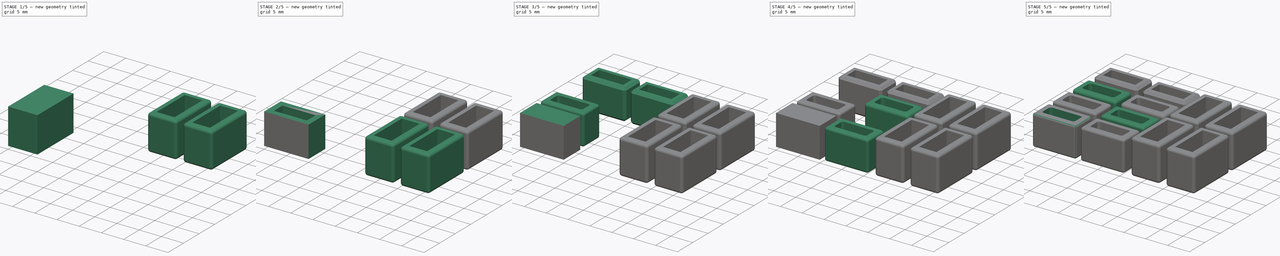
[diagram: build sequence overview — one tinted view per stage of 5, left to right]
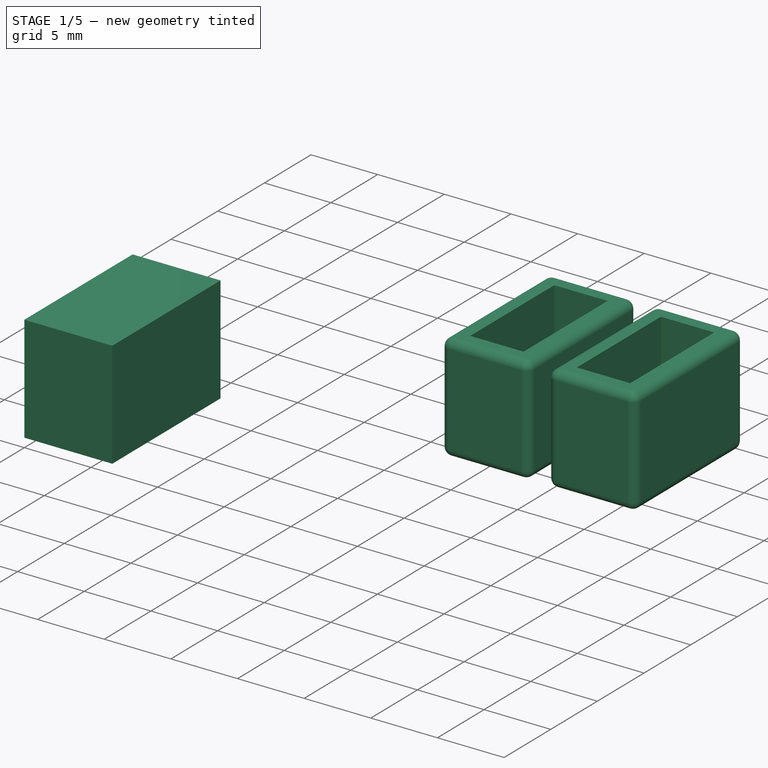
[diagram: stage 1 of 5 — iso view after this stage's code; geometry added in this stage tinted green]
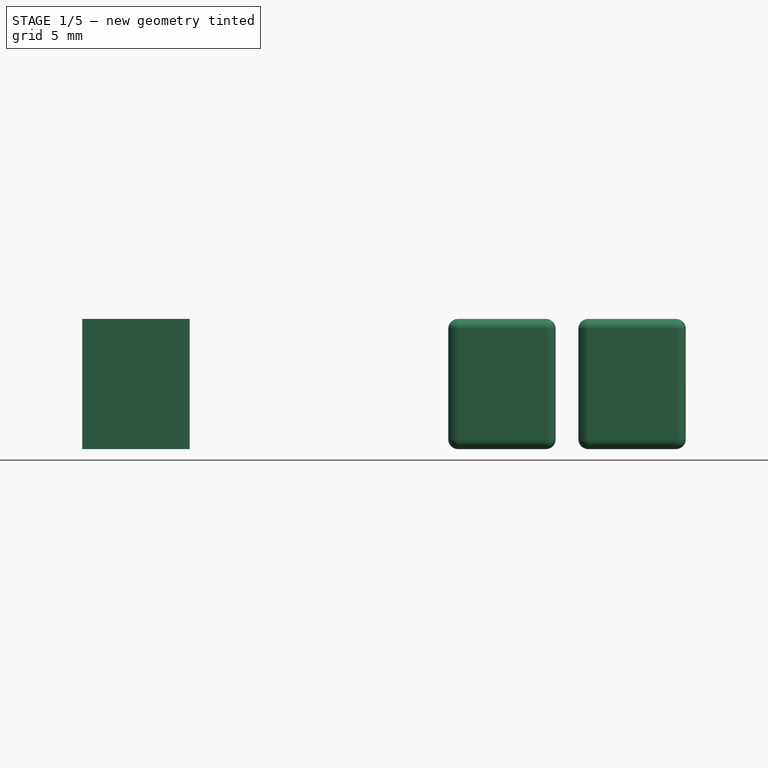
[diagram: stage 1 of 5 — front view after this stage's code; geometry added in this stage tinted green]
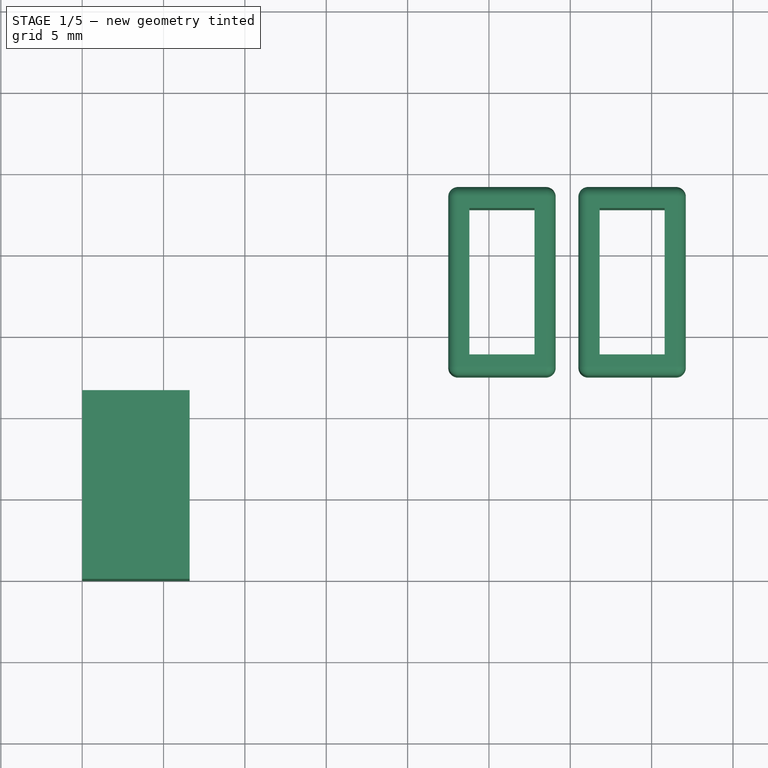
[diagram: stage 1 of 5 — top view after this stage's code; geometry added in this stage tinted green]
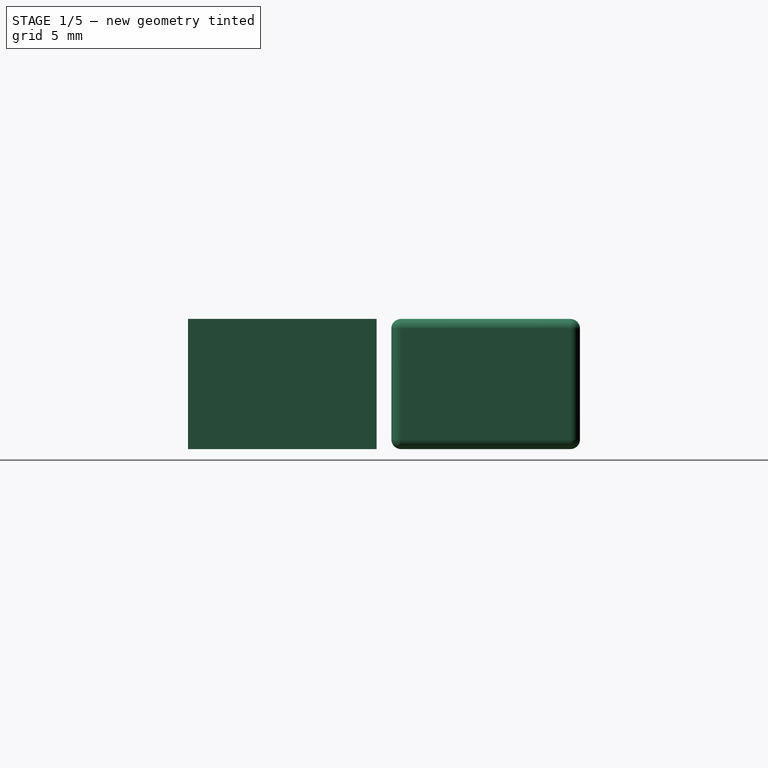
[diagram: stage 1 of 5 — right view after this stage's code; geometry added in this stage tinted green]
FCSTD DOCUMENT  (FreeCAD 0.19R24276 (Git))
Label: salcanV3
License: All rights reserved
LicenseURL: http://en.wikipedia.org/wiki/All_rights_reserved
objects: Part::Box×12, Sketcher::SketchObject×12, PartDesign::FeatureBase×12, PartDesign::Pocket×12, PartDesign::Body×12, Part::Fillet×10, Part::Chamfer×2
note: 84 computed .brp shape members not serialized (recipe doc carries the construction recipe); baked Part::Feature solids carry a one-line shape summary decoded from their .brp

FEATURE [Part::Box] Box009  label="Cube009"
  AttacherType = Attacher::AttachEngine3D
  Height = 8
  Length = 6.6
  Width = 11.6
FEATURE [PartDesign::FeatureBase] BaseFeature009
  BaseFeature = -> Box009
FEATURE [Part::Box] Box010  label="Cube010"
  AttacherType = Attacher::AttachEngine3D
  Height = 8
  Length = 6.6
  Width = 11.6
FEATURE [PartDesign::FeatureBase] BaseFeature010
  BaseFeature = -> Box010
FEATURE [Sketcher::SketchObject] Sketch010
  FullyConstrained = true
  MapMode = 2
  Support = -> [Box010]
  sketch-geometry (4):
    g0: LineSegment StartX=1.3 StartY=1.3 StartZ=0 EndX=5.3 EndY=1.3 EndZ=0
    g1: LineSegment StartX=5.3 StartY=1.3 StartZ=0 EndX=5.3 EndY=10.3 EndZ=0
    g2: LineSegment StartX=5.3 StartY=10.3 StartZ=0 EndX=1.3 EndY=10.3 EndZ=0
    g3: LineSegment StartX=1.3 StartY=10.3 StartZ=0 EndX=1.3 EndY=1.3 EndZ=0
  constraints (12):
    c: Coincident(g0,g1)
    c: Coincident(g1,g2)
    c: Coincident(g2,g3)
    c: Coincident(g3,g0)
    c: Horizontal(g0)
    c: Horizontal(g2)
    c: Vertical(g1)
    c: Vertical(g3)
    c: DistanceY(g3,g3) = 9
    c: DistanceX(g2,g2) = 4
    c: DistanceX(g0) = 1.3
    c: DistanceY(g0) = 1.3
FEATURE [PartDesign::Pocket] Pocket010
  BaseFeature = -> BaseFeature010
  Length = 5
  Length2 = 100
  Profile = -> Sketch010
  Reversed = true
  Type = 1
FEATURE [PartDesign::Body] Body010
  BaseFeature = -> Box010
  Group = -> [BaseFeature010,Sketch010,Pocket010]
  Origin = -> Origin010
  Placement = pos=(22.5,0,0) rot=(0,0,1;0rad)
  Tip = -> Pocket010
FEATURE [Part::Fillet] Fillet008
  Base = -> Body010
  Edges = 12 edges r=0.6: [Edge1,Edge2,Edge3,Edge4,Edge5,Edge6,Edge7,Edge8,Edge9,Edge14,Edge15,Edge16]
  Placement = pos=(0,12.5,0) rot=(0,0,1;0rad)
FEATURE [Part::Box] Box011  label="Cube011"
  AttacherType = Attacher::AttachEngine3D
  Height = 8
  Length = 6.6
  Width = 11.6
FEATURE [Sketcher::SketchObject] Sketch011
  FullyConstrained = true
  MapMode = 2
  Support = -> [Box011]
  sketch-geometry (4):
    g0: LineSegment StartX=1.3 StartY=1.3 StartZ=0 EndX=5.3 EndY=1.3 EndZ=0
    g1: LineSegment StartX=5.3 StartY=1.3 StartZ=0 EndX=5.3 EndY=10.3 EndZ=0
    g2: LineSegment StartX=5.3 StartY=10.3 StartZ=0 EndX=1.3 EndY=10.3 EndZ=0
    g3: LineSegment StartX=1.3 StartY=10.3 StartZ=0 EndX=1.3 EndY=1.3 EndZ=0
  constraints (12):
    c: Coincident(g0,g1)
    c: Coincident(g1,g2)
    c: Coincident(g2,g3)
    c: Coincident(g3,g0)
    c: Horizontal(g0)
    c: Horizontal(g2)
    c: Vertical(g1)
    c: Vertical(g3)
    c: DistanceY(g3,g3) = 9
    c: DistanceX(g2,g2) = 4
    c: DistanceX(g0) = 1.3
    c: DistanceY(g0) = 1.3
FEATURE [PartDesign::FeatureBase] BaseFeature011
  BaseFeature = -> Box011
FEATURE [PartDesign::Pocket] Pocket011
  BaseFeature = -> BaseFeature011
  Length = 5
  Length2 = 100
  Profile = -> Sketch011
  Reversed = true
  Type = 1
FEATURE [PartDesign::Body] Body011
  BaseFeature = -> Box011
  Group = -> [BaseFeature011,Sketch011,Pocket011]
  Origin = -> Origin011
  Placement = pos=(22.5,0,0) rot=(0,0,1;0rad)
  Tip = -> Pocket011
FEATURE [Part::Fillet] Fillet009
  Base = -> Body011
  Edges = 12 edges r=0.6: [Edge1,Edge2,Edge3,Edge4,Edge5,Edge6,Edge7,Edge8,Edge9,Edge14,Edge15,Edge16]
  Placement = pos=(8,12.5,0) rot=(0,0,1;0rad)
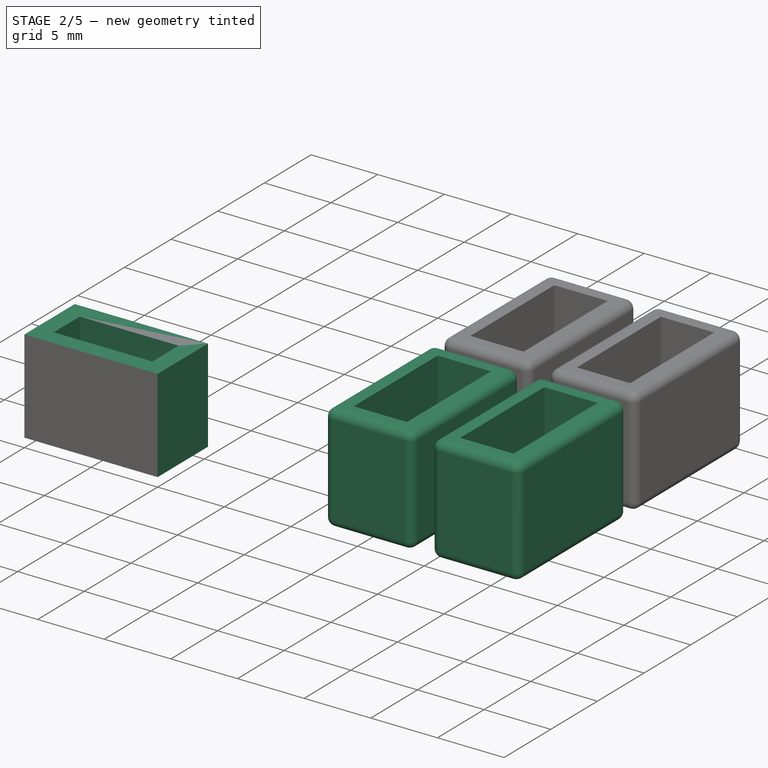
[diagram: stage 2 of 5 — iso view after this stage's code; geometry added in this stage tinted green]
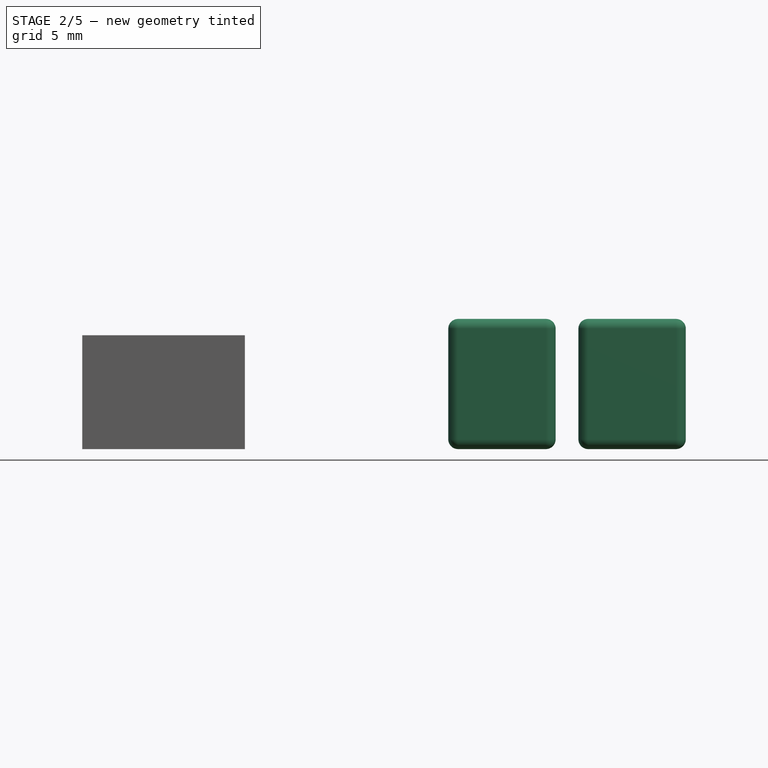
[diagram: stage 2 of 5 — front view after this stage's code; geometry added in this stage tinted green]
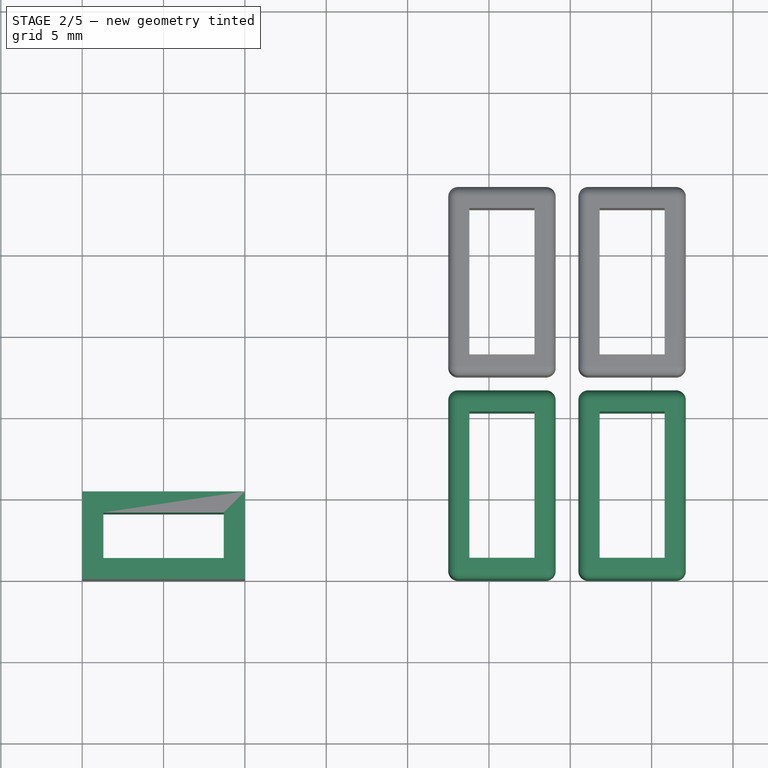
[diagram: stage 2 of 5 — top view after this stage's code; geometry added in this stage tinted green]
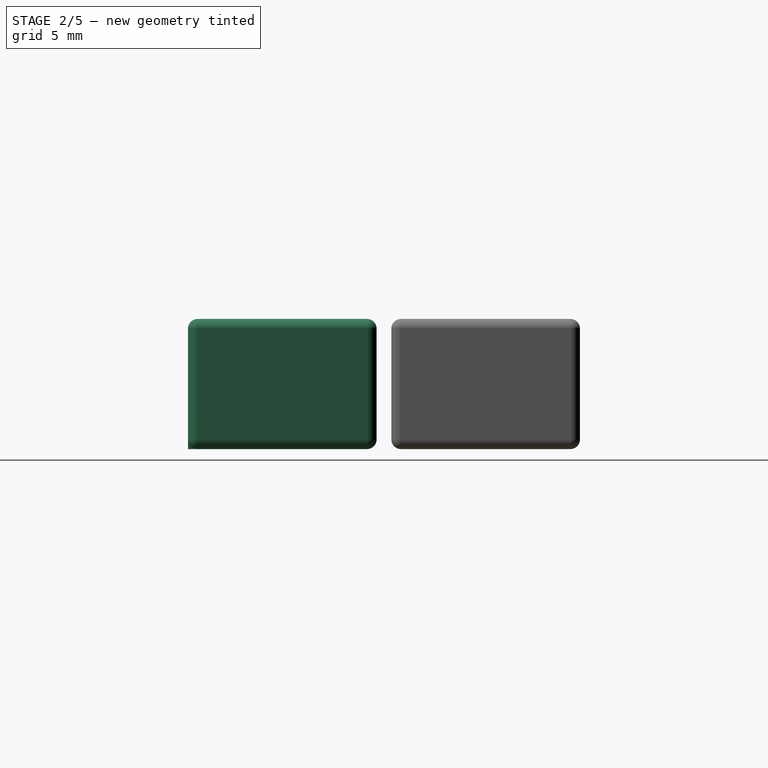
[diagram: stage 2 of 5 — right view after this stage's code; geometry added in this stage tinted green]
FEATURE [Part::Box] Box007  label="Cube007"
  AttacherType = Attacher::AttachEngine3D
  Height = 7
  Length = 10
  Placement = pos=(-11,0,0) rot=(0,0,1;0rad)
  Width = 5.4
FEATURE [Sketcher::SketchObject] Sketch007
  FullyConstrained = true
  sketch-geometry (4):
    g0: LineSegment StartX=1.3 StartY=1.3 StartZ=0 EndX=8.7 EndY=1.3 EndZ=0
    g1: LineSegment StartX=8.7 StartY=1.3 StartZ=0 EndX=8.7 EndY=4.1 EndZ=0
    g2: LineSegment StartX=8.7 StartY=4.1 StartZ=0 EndX=1.3 EndY=4.1 EndZ=0
    g3: LineSegment StartX=1.3 StartY=4.1 StartZ=0 EndX=1.3 EndY=1.3 EndZ=0
  constraints (12):
    c: Coincident(g0,g1)
    c: Coincident(g1,g2)
    c: Coincident(g2,g3)
    c: Coincident(g3,g0)
    c: Horizontal(g0)
    c: Horizontal(g2)
    c: Vertical(g1)
    c: Vertical(g3)
    c: DistanceX(g2,g2) = 7.4
    c: DistanceY(g1,g1) = 2.8
    c: DistanceX(g0) = 1.3
    c: DistanceY(g0) = 1.3
FEATURE [PartDesign::FeatureBase] BaseFeature007
  BaseFeature = -> Box007
FEATURE [PartDesign::Pocket] Pocket007
  BaseFeature = -> BaseFeature007
  Length = 26
  Length2 = 100
  Profile = -> Sketch007
  Reversed = true
  Type = 1
FEATURE [Part::Box] Box008  label="Cube008"
  AttacherType = Attacher::AttachEngine3D
  Height = 8
  Length = 6.6
  Width = 11.6
FEATURE [Sketcher::SketchObject] Sketch008
  FullyConstrained = true
  MapMode = 2
  Support = -> [Box008]
  sketch-geometry (4):
    g0: LineSegment StartX=1.3 StartY=1.3 StartZ=0 EndX=5.3 EndY=1.3 EndZ=0
    g1: LineSegment StartX=5.3 StartY=1.3 StartZ=0 EndX=5.3 EndY=10.3 EndZ=0
    g2: LineSegment StartX=5.3 StartY=10.3 StartZ=0 EndX=1.3 EndY=10.3 EndZ=0
    g3: LineSegment StartX=1.3 StartY=10.3 StartZ=0 EndX=1.3 EndY=1.3 EndZ=0
  constraints (12):
    c: Coincident(g0,g1)
    c: Coincident(g1,g2)
    c: Coincident(g2,g3)
    c: Coincident(g3,g0)
    c: Horizontal(g0)
    c: Horizontal(g2)
    c: Vertical(g1)
    c: Vertical(g3)
    c: DistanceY(g3,g3) = 9
    c: DistanceX(g2,g2) = 4
    c: DistanceX(g0) = 1.3
    c: DistanceY(g0) = 1.3
FEATURE [PartDesign::FeatureBase] BaseFeature008
  BaseFeature = -> Box008
FEATURE [PartDesign::Pocket] Pocket008
  BaseFeature = -> BaseFeature008
  Length = 5
  Length2 = 100
  Profile = -> Sketch008
  Reversed = true
  Type = 1
FEATURE [PartDesign::Body] Body008
  BaseFeature = -> Box008
  Group = -> [BaseFeature008,Sketch008,Pocket008]
  Origin = -> Origin008
  Placement = pos=(22.5,0,0) rot=(0,0,1;0rad)
  Tip = -> Pocket008
FEATURE [Part::Fillet] Fillet006
  Base = -> Body008
  Edges = 12 edges r=0.6: [Edge1,Edge2,Edge3,Edge4,Edge5,Edge6,Edge7,Edge8,Edge9,Edge14,Edge15,Edge16]
FEATURE [Sketcher::SketchObject] Sketch009
  FullyConstrained = true
  MapMode = 2
  Support = -> [Box009]
  sketch-geometry (4):
    g0: LineSegment StartX=1.3 StartY=1.3 StartZ=0 EndX=5.3 EndY=1.3 EndZ=0
    g1: LineSegment StartX=5.3 StartY=1.3 StartZ=0 EndX=5.3 EndY=10.3 EndZ=0
    g2: LineSegment StartX=5.3 StartY=10.3 StartZ=0 EndX=1.3 EndY=10.3 EndZ=0
    g3: LineSegment StartX=1.3 StartY=10.3 StartZ=0 EndX=1.3 EndY=1.3 EndZ=0
  constraints (12):
    c: Coincident(g0,g1)
    c: Coincident(g1,g2)
    c: Coincident(g2,g3)
    c: Coincident(g3,g0)
    c: Horizontal(g0)
    c: Horizontal(g2)
    c: Vertical(g1)
    c: Vertical(g3)
    c: DistanceY(g3,g3) = 9
    c: DistanceX(g2,g2) = 4
    c: DistanceX(g0) = 1.3
    c: DistanceY(g0) = 1.3
FEATURE [PartDesign::Pocket] Pocket009
  BaseFeature = -> BaseFeature009
  Length = 5
  Length2 = 100
  Profile = -> Sketch009
  Reversed = true
  Type = 1
FEATURE [PartDesign::Body] Body009
  BaseFeature = -> Box009
  Group = -> [BaseFeature009,Sketch009,Pocket009]
  Origin = -> Origin009
  Placement = pos=(22.5,0,0) rot=(0,0,1;0rad)
  Tip = -> Pocket009
FEATURE [Part::Fillet] Fillet007
  Base = -> Body009
  Edges = 12 edges r=0.6: [Edge1,Edge2,Edge3,Edge4,Edge5,Edge6,Edge7,Edge8,Edge9,Edge14,Edge15,Edge16]
  Placement = pos=(8,0,0) rot=(0,0,1;0rad)
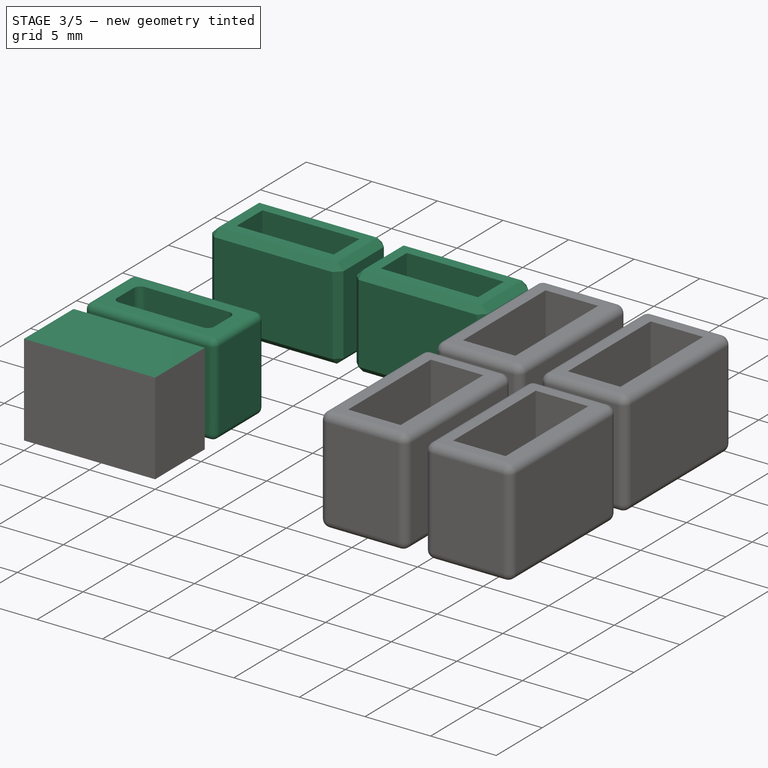
[diagram: stage 3 of 5 — iso view after this stage's code; geometry added in this stage tinted green]
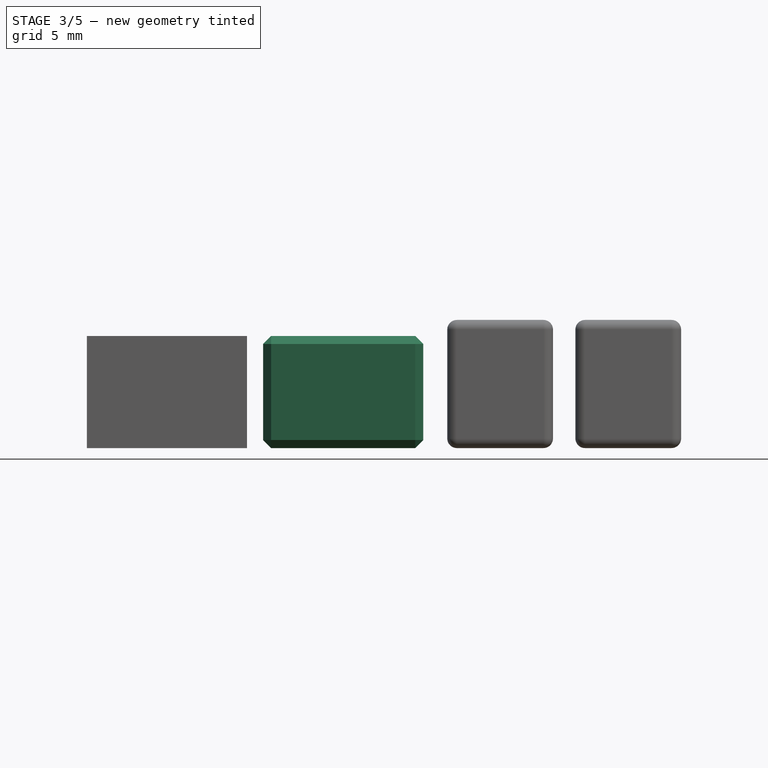
[diagram: stage 3 of 5 — front view after this stage's code; geometry added in this stage tinted green]
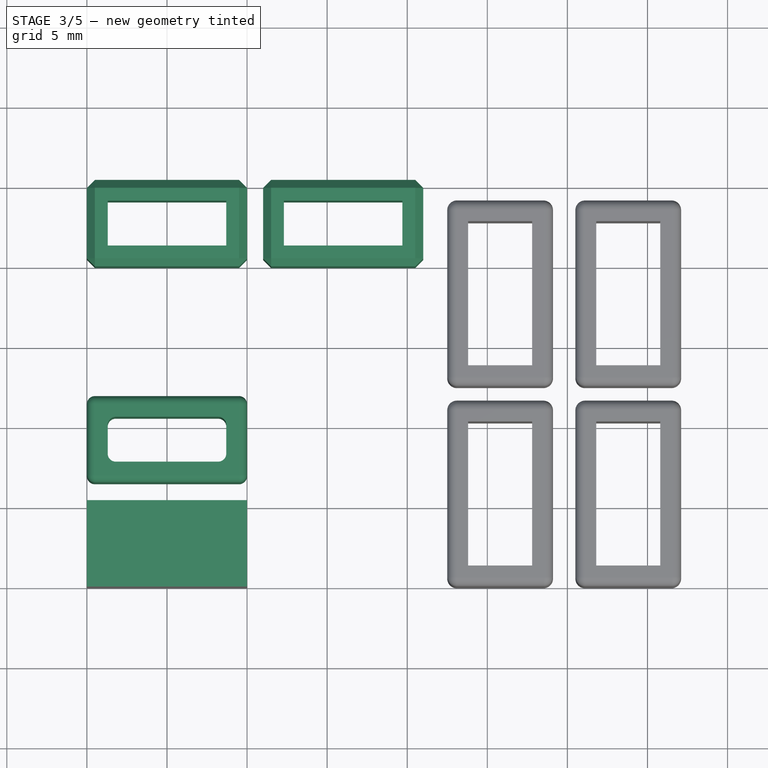
[diagram: stage 3 of 5 — top view after this stage's code; geometry added in this stage tinted green]
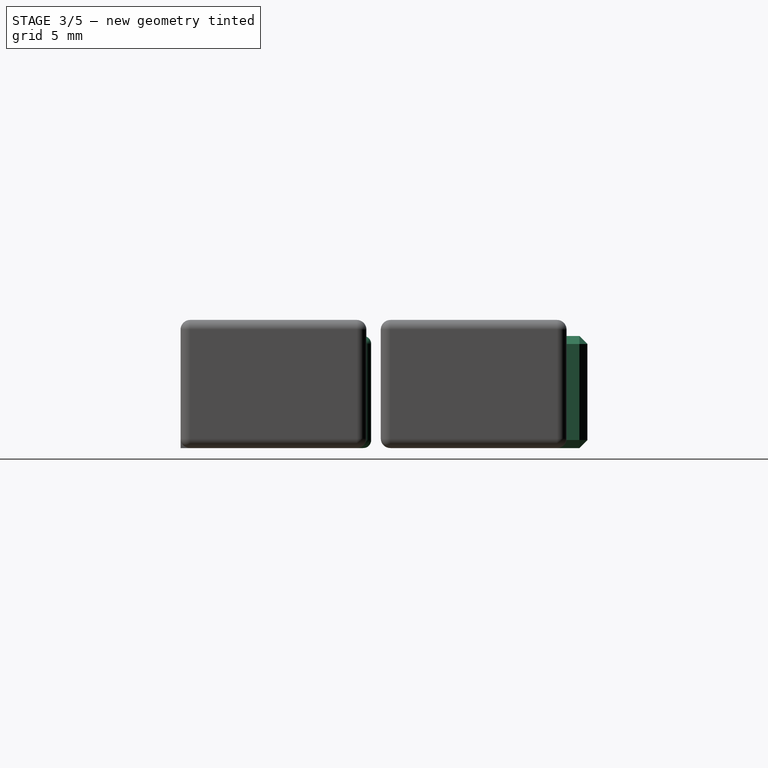
[diagram: stage 3 of 5 — right view after this stage's code; geometry added in this stage tinted green]
FEATURE [Sketcher::SketchObject] Sketch001
  FullyConstrained = true
  sketch-geometry (4):
    g0: LineSegment StartX=1.3 StartY=1.3 StartZ=0 EndX=8.7 EndY=1.3 EndZ=0
    g1: LineSegment StartX=8.7 StartY=1.3 StartZ=0 EndX=8.7 EndY=4.1 EndZ=0
    g2: LineSegment StartX=8.7 StartY=4.1 StartZ=0 EndX=1.3 EndY=4.1 EndZ=0
    g3: LineSegment StartX=1.3 StartY=4.1 StartZ=0 EndX=1.3 EndY=1.3 EndZ=0
  constraints (12):
    c: Coincident(g0,g1)
    c: Coincident(g1,g2)
    c: Coincident(g2,g3)
    c: Coincident(g3,g0)
    c: Horizontal(g0)
    c: Horizontal(g2)
    c: Vertical(g1)
    c: Vertical(g3)
    c: DistanceX(g2,g2) = 7.4
    c: DistanceY(g1,g1) = 2.8
    c: DistanceX(g0) = 1.3
    c: DistanceY(g0) = 1.3
FEATURE [Part::Box] Box001  label="Cube001"
  AttacherType = Attacher::AttachEngine3D
  Height = 7
  Length = 10
  Width = 5.4
FEATURE [PartDesign::FeatureBase] BaseFeature001
  BaseFeature = -> Box001
FEATURE [PartDesign::Pocket] Pocket001
  BaseFeature = -> BaseFeature001
  Length = 26
  Length2 = 100
  Profile = -> Sketch001
  Reversed = true
  Type = 1
FEATURE [PartDesign::Body] Body001
  BaseFeature = -> Box001
  Group = -> [BaseFeature001,Sketch001,Pocket001]
  Origin = -> Origin001
  Tip = -> Pocket001
FEATURE [Sketcher::SketchObject] Sketch002
  FullyConstrained = true
  sketch-geometry (4):
    g0: LineSegment StartX=1.3 StartY=1.3 StartZ=0 EndX=8.7 EndY=1.3 EndZ=0
    g1: LineSegment StartX=8.7 StartY=1.3 StartZ=0 EndX=8.7 EndY=4.1 EndZ=0
    g2: LineSegment StartX=8.7 StartY=4.1 StartZ=0 EndX=1.3 EndY=4.1 EndZ=0
    g3: LineSegment StartX=1.3 StartY=4.1 StartZ=0 EndX=1.3 EndY=1.3 EndZ=0
  constraints (12):
    c: Coincident(g0,g1)
    c: Coincident(g1,g2)
    c: Coincident(g2,g3)
    c: Coincident(g3,g0)
    c: Horizontal(g0)
    c: Horizontal(g2)
    c: Vertical(g1)
    c: Vertical(g3)
    c: DistanceX(g2,g2) = 7.4
    c: DistanceY(g1,g1) = 2.8
    c: DistanceX(g0) = 1.3
    c: DistanceY(g0) = 1.3
FEATURE [Part::Box] Box002  label="Cube002"
  AttacherType = Attacher::AttachEngine3D
  Height = 7
  Length = 10
  Width = 5.4
FEATURE [Part::Fillet] Fillet001
  Base = -> Body001
  Edges = 16 edges r=0.5: [Edge1,Edge2,Edge3,Edge4,Edge5,Edge6,Edge7,Edge8,Edge9,Edge14,Edge15,Edge16,Edge21,Edge22,Edge23,Edge24]
  Placement = pos=(0,6.5,0) rot=(0,0,1;0rad)
FEATURE [Sketcher::SketchObject] Sketch006
  FullyConstrained = true
  sketch-geometry (4):
    g0: LineSegment StartX=1.3 StartY=1.3 StartZ=0 EndX=8.7 EndY=1.3 EndZ=0
    g1: LineSegment StartX=8.7 StartY=1.3 StartZ=0 EndX=8.7 EndY=4.1 EndZ=0
    g2: LineSegment StartX=8.7 StartY=4.1 StartZ=0 EndX=1.3 EndY=4.1 EndZ=0
    g3: LineSegment StartX=1.3 StartY=4.1 StartZ=0 EndX=1.3 EndY=1.3 EndZ=0
  constraints (12):
    c: Coincident(g0,g1)
    c: Coincident(g1,g2)
    c: Coincident(g2,g3)
    c: Coincident(g3,g0)
    c: Horizontal(g0)
    c: Horizontal(g2)
    c: Vertical(g1)
    c: Vertical(g3)
    c: DistanceX(g2,g2) = 7.4
    c: DistanceY(g1,g1) = 2.8
    c: DistanceX(g0) = 1.3
    c: DistanceY(g0) = 1.3
FEATURE [Part::Box] Box006  label="Cube006"
  AttacherType = Attacher::AttachEngine3D
  Height = 7
  Length = 10
  Placement = pos=(-11,0,0) rot=(0,0,1;0rad)
  Width = 5.4
FEATURE [PartDesign::FeatureBase] BaseFeature006
  BaseFeature = -> Box006
FEATURE [PartDesign::Pocket] Pocket006
  BaseFeature = -> BaseFeature006
  Length = 26
  Length2 = 100
  Profile = -> Sketch006
  Reversed = true
  Type = 1
FEATURE [PartDesign::Body] Body006
  BaseFeature = -> Box006
  Group = -> [BaseFeature006,Sketch006,Pocket006]
  Origin = -> Origin006
  Placement = pos=(-11,0,0) rot=(0,0,1;0rad)
  Tip = -> Pocket006
FEATURE [Part::Chamfer] Chamfer
  Base = -> Body006
  Edges = 12 edges r=0.5: [Edge1,Edge2,Edge3,Edge4,Edge5,Edge6,Edge7,Edge8,Edge9,Edge14,Edge15,Edge16]
  Placement = pos=(22,20,0) rot=(0,0,1;0rad)
FEATURE [PartDesign::Body] Body007
  BaseFeature = -> Box007
  Group = -> [BaseFeature007,Sketch007,Pocket007]
  Origin = -> Origin007
  Placement = pos=(-11,0,0) rot=(0,0,1;0rad)
  Tip = -> Pocket007
FEATURE [Part::Chamfer] Chamfer001
  Base = -> Body007
  Edges = 12 edges r=0.5: [Edge1,Edge2,Edge3,Edge4,Edge5,Edge6,Edge7,Edge8,Edge9,Edge14,Edge15,Edge16]
  Placement = pos=(11,20,0) rot=(0,0,1;0rad)
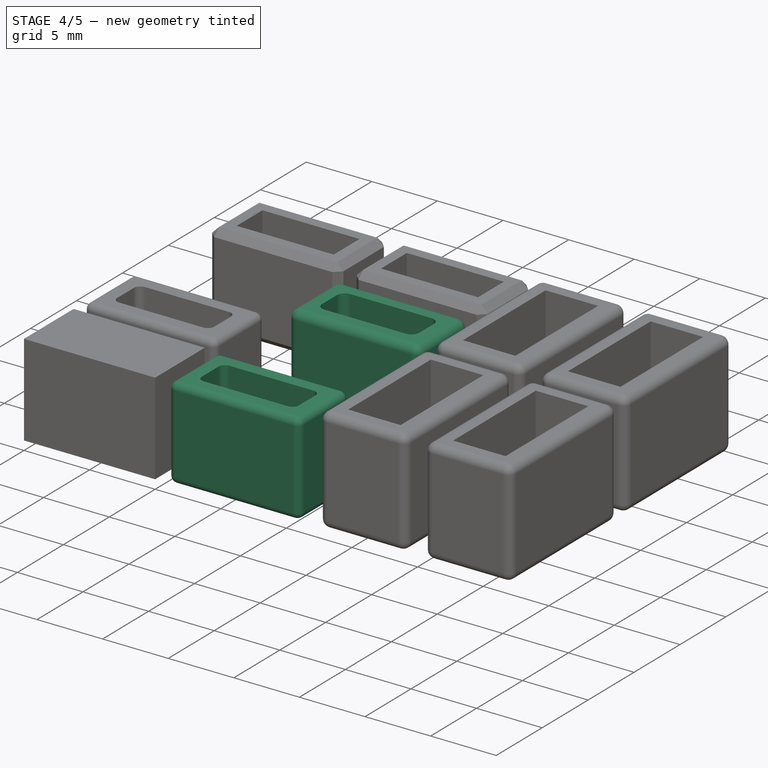
[diagram: stage 4 of 5 — iso view after this stage's code; geometry added in this stage tinted green]
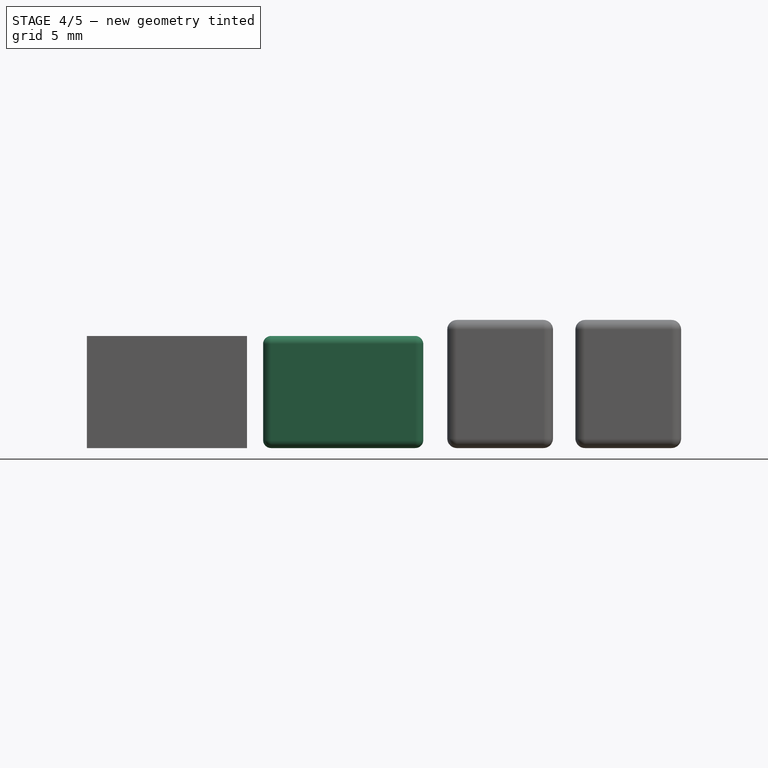
[diagram: stage 4 of 5 — front view after this stage's code; geometry added in this stage tinted green]
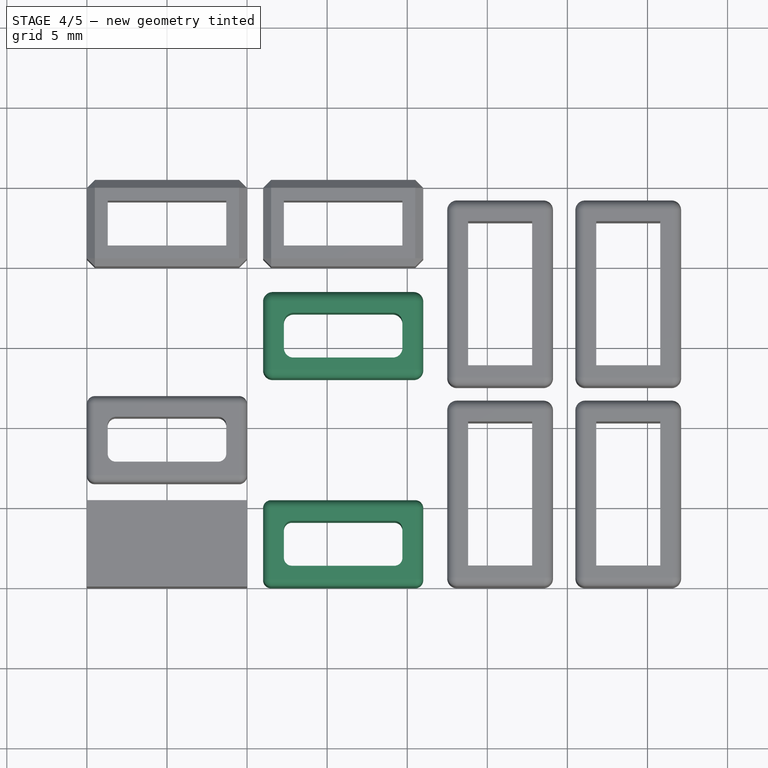
[diagram: stage 4 of 5 — top view after this stage's code; geometry added in this stage tinted green]
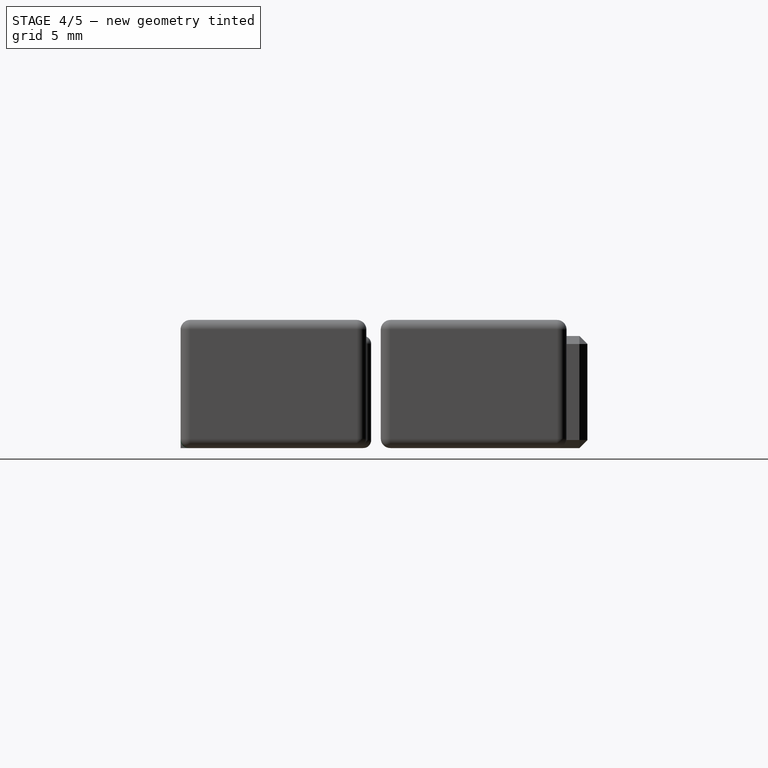
[diagram: stage 4 of 5 — right view after this stage's code; geometry added in this stage tinted green]
FEATURE [PartDesign::FeatureBase] BaseFeature002
  BaseFeature = -> Box002
FEATURE [PartDesign::Pocket] Pocket002
  BaseFeature = -> BaseFeature002
  Length = 26
  Length2 = 100
  Profile = -> Sketch002
  Reversed = true
  Type = 1
FEATURE [Sketcher::SketchObject] Sketch004
  FullyConstrained = true
  sketch-geometry (4):
    g0: LineSegment StartX=1.3 StartY=1.3 StartZ=0 EndX=8.7 EndY=1.3 EndZ=0
    g1: LineSegment StartX=8.7 StartY=1.3 StartZ=0 EndX=8.7 EndY=4.1 EndZ=0
    g2: LineSegment StartX=8.7 StartY=4.1 StartZ=0 EndX=1.3 EndY=4.1 EndZ=0
    g3: LineSegment StartX=1.3 StartY=4.1 StartZ=0 EndX=1.3 EndY=1.3 EndZ=0
  constraints (12):
    c: Coincident(g0,g1)
    c: Coincident(g1,g2)
    c: Coincident(g2,g3)
    c: Coincident(g3,g0)
    c: Horizontal(g0)
    c: Horizontal(g2)
    c: Vertical(g1)
    c: Vertical(g3)
    c: DistanceX(g2,g2) = 7.4
    c: DistanceY(g1,g1) = 2.8
    c: DistanceX(g0) = 1.3
    c: DistanceY(g0) = 1.3
FEATURE [Part::Box] Box004  label="Cube004"
  AttacherType = Attacher::AttachEngine3D
  Height = 7
  Length = 10
  Width = 5.4
FEATURE [PartDesign::FeatureBase] BaseFeature004
  BaseFeature = -> Box004
FEATURE [Sketcher::SketchObject] Sketch005
  FullyConstrained = true
  sketch-geometry (4):
    g0: LineSegment StartX=1.3 StartY=1.3 StartZ=0 EndX=8.7 EndY=1.3 EndZ=0
    g1: LineSegment StartX=8.7 StartY=1.3 StartZ=0 EndX=8.7 EndY=4.1 EndZ=0
    g2: LineSegment StartX=8.7 StartY=4.1 StartZ=0 EndX=1.3 EndY=4.1 EndZ=0
    g3: LineSegment StartX=1.3 StartY=4.1 StartZ=0 EndX=1.3 EndY=1.3 EndZ=0
  constraints (12):
    c: Coincident(g0,g1)
    c: Coincident(g1,g2)
    c: Coincident(g2,g3)
    c: Coincident(g3,g0)
    c: Horizontal(g0)
    c: Horizontal(g2)
    c: Vertical(g1)
    c: Vertical(g3)
    c: DistanceX(g2,g2) = 7.4
    c: DistanceY(g1,g1) = 2.8
    c: DistanceX(g0) = 1.3
    c: DistanceY(g0) = 1.3
FEATURE [Part::Box] Box005  label="Cube005"
  AttacherType = Attacher::AttachEngine3D
  Height = 7
  Length = 10
  Width = 5.4
FEATURE [PartDesign::FeatureBase] BaseFeature005
  BaseFeature = -> Box005
FEATURE [PartDesign::Pocket] Pocket005
  BaseFeature = -> BaseFeature005
  Length = 26
  Length2 = 100
  Profile = -> Sketch005
  Reversed = true
  Type = 1
FEATURE [PartDesign::Body] Body005
  BaseFeature = -> Box005
  Group = -> [BaseFeature005,Sketch005,Pocket005]
  Origin = -> Origin005
  Tip = -> Pocket005
FEATURE [Part::Fillet] Fillet005
  Base = -> Body005
  Edges = 16 edges r=0.6: [Edge1,Edge2,Edge3,Edge4,Edge5,Edge6,Edge7,Edge8,Edge9,Edge14,Edge15,Edge16,Edge21,Edge22,Edge23,Edge24]
  Placement = pos=(11,13,0) rot=(0,0,1;0rad)
FEATURE [Part::Fillet] Fillet002
  Base = -> Body002
  Edges = 16 edges r=0.5: [Edge1,Edge2,Edge3,Edge4,Edge5,Edge6,Edge7,Edge8,Edge9,Edge14,Edge15,Edge16,Edge21,Edge22,Edge23,Edge24]
  Placement = pos=(11,0,0) rot=(0,0,1;0rad)
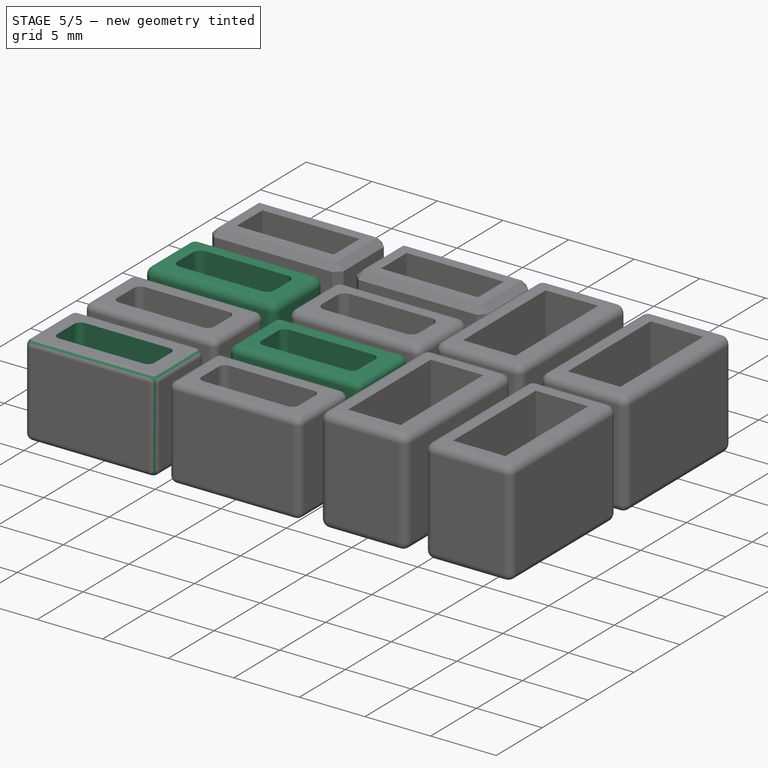
[diagram: stage 5 of 5 — iso view after this stage's code; geometry added in this stage tinted green]
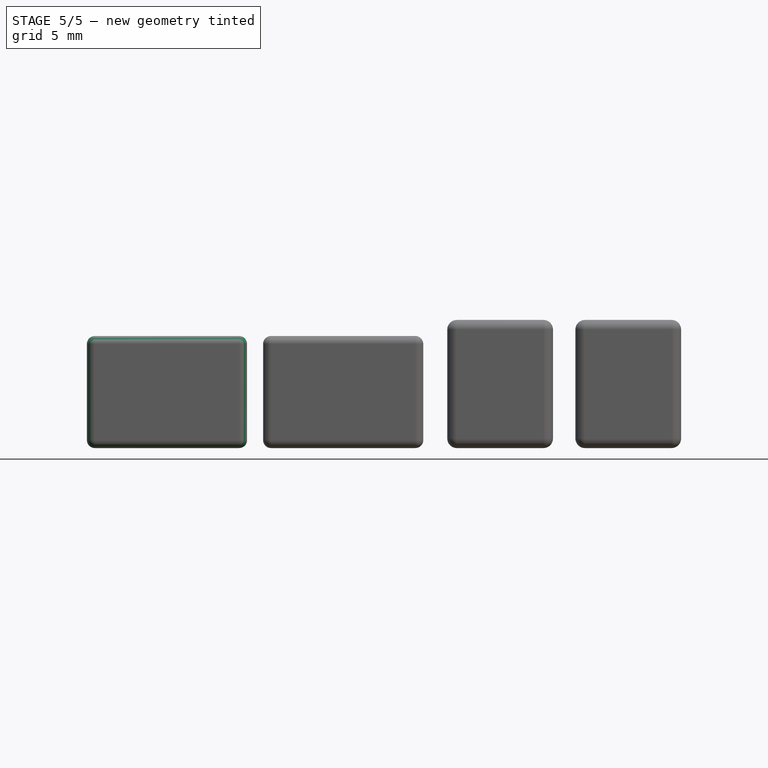
[diagram: stage 5 of 5 — front view after this stage's code; geometry added in this stage tinted green]
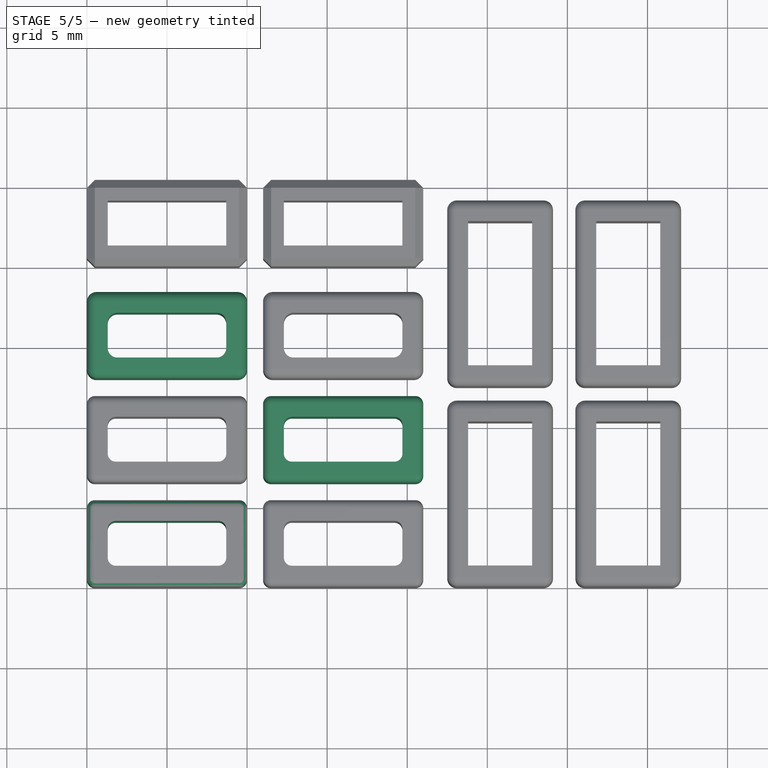
[diagram: stage 5 of 5 — top view after this stage's code; geometry added in this stage tinted green]
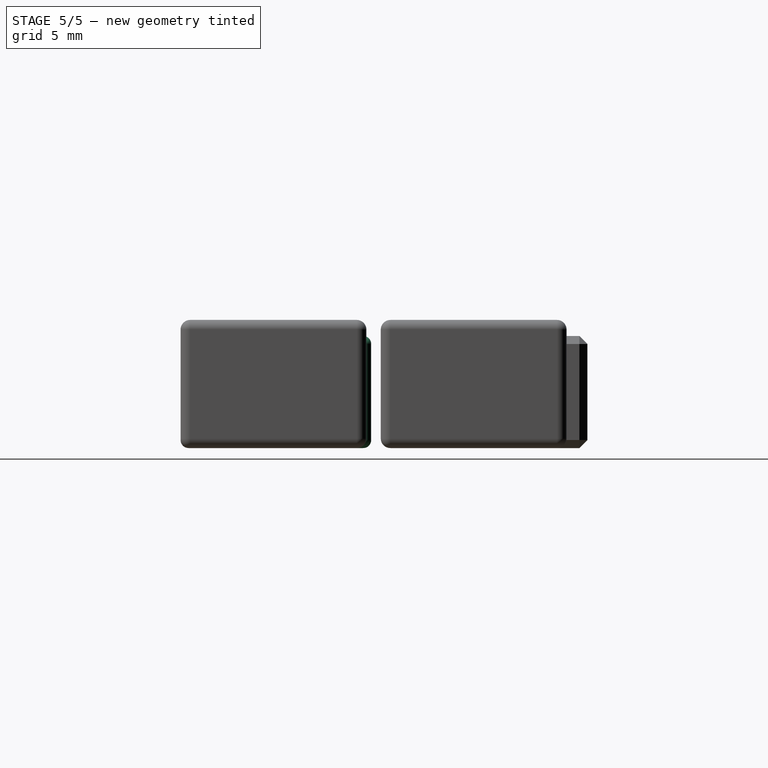
[diagram: stage 5 of 5 — right view after this stage's code; geometry added in this stage tinted green]
FEATURE [Part::Box] Box  label="Cube"
  AttacherType = Attacher::AttachEngine3D
  Height = 7
  Length = 10
  Width = 5.4
FEATURE [Sketcher::SketchObject] Sketch
  FullyConstrained = true
  sketch-geometry (4):
    g0: LineSegment StartX=1.3 StartY=1.3 StartZ=0 EndX=8.7 EndY=1.3 EndZ=0
    g1: LineSegment StartX=8.7 StartY=1.3 StartZ=0 EndX=8.7 EndY=4.1 EndZ=0
    g2: LineSegment StartX=8.7 StartY=4.1 StartZ=0 EndX=1.3 EndY=4.1 EndZ=0
    g3: LineSegment StartX=1.3 StartY=4.1 StartZ=0 EndX=1.3 EndY=1.3 EndZ=0
  constraints (12):
    c: Coincident(g0,g1)
    c: Coincident(g1,g2)
    c: Coincident(g2,g3)
    c: Coincident(g3,g0)
    c: Horizontal(g0)
    c: Horizontal(g2)
    c: Vertical(g1)
    c: Vertical(g3)
    c: DistanceX(g2,g2) = 7.4
    c: DistanceY(g1,g1) = 2.8
    c: DistanceX(g0) = 1.3
    c: DistanceY(g0) = 1.3
FEATURE [PartDesign::FeatureBase] BaseFeature
  BaseFeature = -> Box
FEATURE [PartDesign::Pocket] Pocket
  BaseFeature = -> BaseFeature
  Length = 26
  Length2 = 100
  Profile = -> Sketch
  Reversed = true
  Type = 1
FEATURE [PartDesign::Body] Body
  BaseFeature = -> Box
  Group = -> [BaseFeature,Sketch,Pocket]
  Origin = -> Origin
  Tip = -> Pocket
FEATURE [Part::Fillet] Fillet  label="Fillet000"
  Base = -> Body
  Edges = 16 edges r=0.5: [Edge1,Edge2,Edge3,Edge4,Edge5,Edge6,Edge7,Edge8,Edge9,Edge14,Edge15,Edge16,Edge21,Edge22,Edge23,Edge24]
FEATURE [PartDesign::Body] Body002
  BaseFeature = -> Box002
  Group = -> [BaseFeature002,Sketch002,Pocket002]
  Origin = -> Origin002
  Tip = -> Pocket002
FEATURE [Sketcher::SketchObject] Sketch003
  FullyConstrained = true
  sketch-geometry (4):
    g0: LineSegment StartX=1.3 StartY=1.3 StartZ=0 EndX=8.7 EndY=1.3 EndZ=0
    g1: LineSegment StartX=8.7 StartY=1.3 StartZ=0 EndX=8.7 EndY=4.1 EndZ=0
    g2: LineSegment StartX=8.7 StartY=4.1 StartZ=0 EndX=1.3 EndY=4.1 EndZ=0
    g3: LineSegment StartX=1.3 StartY=4.1 StartZ=0 EndX=1.3 EndY=1.3 EndZ=0
  constraints (12):
    c: Coincident(g0,g1)
    c: Coincident(g1,g2)
    c: Coincident(g2,g3)
    c: Coincident(g3,g0)
    c: Horizontal(g0)
    c: Horizontal(g2)
    c: Vertical(g1)
    c: Vertical(g3)
    c: DistanceX(g2,g2) = 7.4
    c: DistanceY(g1,g1) = 2.8
    c: DistanceX(g0) = 1.3
    c: DistanceY(g0) = 1.3
FEATURE [Part::Box] Box003  label="Cube003"
  AttacherType = Attacher::AttachEngine3D
  Height = 7
  Length = 10
  Width = 5.4
FEATURE [PartDesign::FeatureBase] BaseFeature003
  BaseFeature = -> Box003
FEATURE [PartDesign::Pocket] Pocket003
  BaseFeature = -> BaseFeature003
  Length = 26
  Length2 = 100
  Profile = -> Sketch003
  Reversed = true
  Type = 1
FEATURE [PartDesign::Body] Body003
  BaseFeature = -> Box003
  Group = -> [BaseFeature003,Sketch003,Pocket003]
  Origin = -> Origin003
  Tip = -> Pocket003
FEATURE [Part::Fillet] Fillet003
  Base = -> Body003
  Edges = 16 edges r=0.5: [Edge1,Edge2,Edge3,Edge4,Edge5,Edge6,Edge7,Edge8,Edge9,Edge14,Edge15,Edge16,Edge21,Edge22,Edge23,Edge24]
  Placement = pos=(11,6.5,0) rot=(0,0,1;0rad)
FEATURE [PartDesign::Pocket] Pocket004
  BaseFeature = -> BaseFeature004
  Length = 26
  Length2 = 100
  Profile = -> Sketch004
  Reversed = true
  Type = 1
FEATURE [PartDesign::Body] Body004
  BaseFeature = -> Box004
  Group = -> [BaseFeature004,Sketch004,Pocket004]
  Origin = -> Origin004
  Tip = -> Pocket004
FEATURE [Part::Fillet] Fillet004
  Base = -> Body004
  Edges = 16 edges r=0.6: [Edge1,Edge2,Edge3,Edge4,Edge5,Edge6,Edge7,Edge8,Edge9,Edge14,Edge15,Edge16,Edge21,Edge22,Edge23,Edge24]
  Placement = pos=(0,13,0) rot=(0,0,1;0rad)
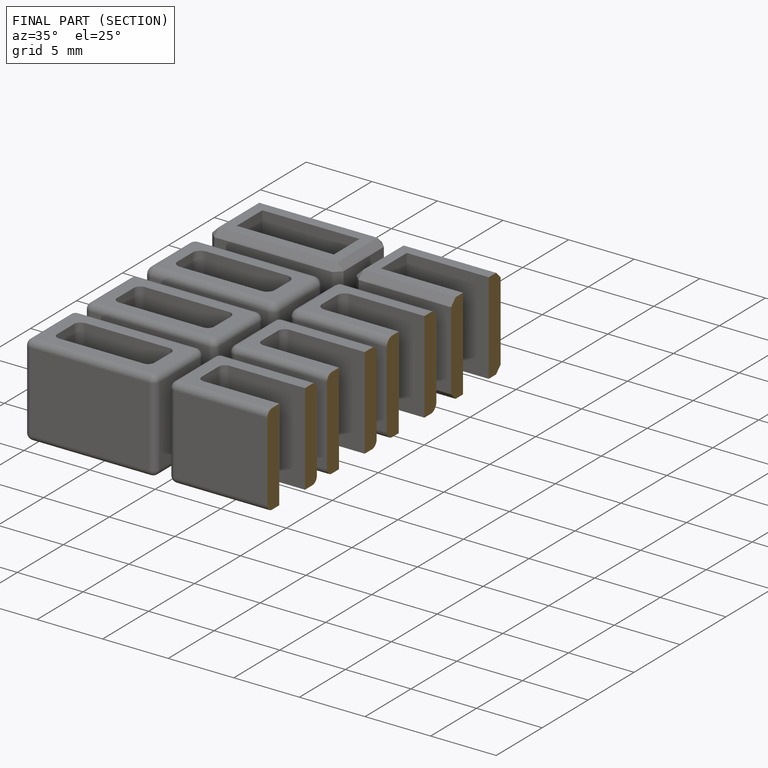
[diagram: finished part — half-section view (interior)]
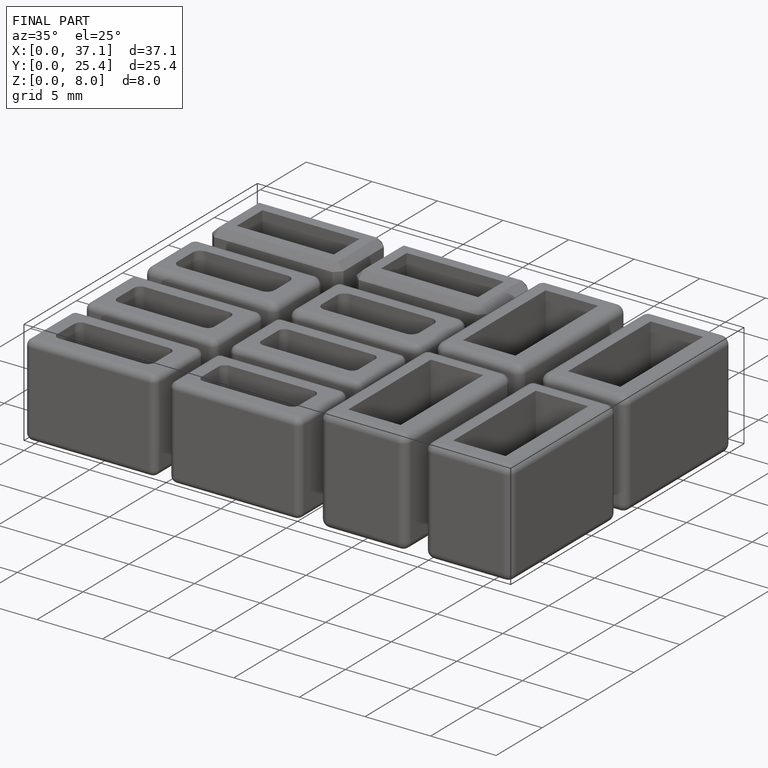
[diagram: finished part — iso view with bounding-box wireframe]
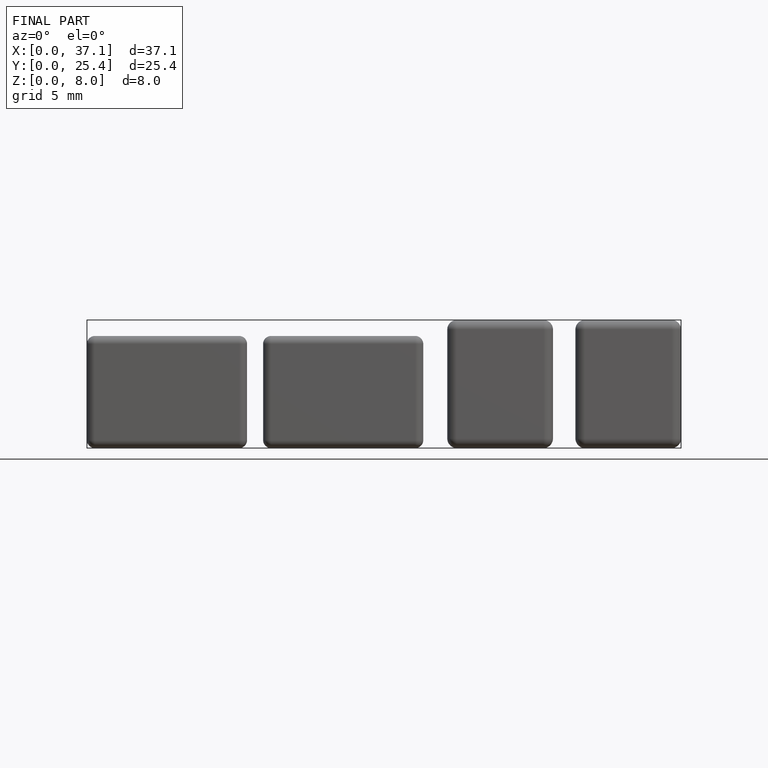
[diagram: finished part — front view with bounding-box wireframe]
